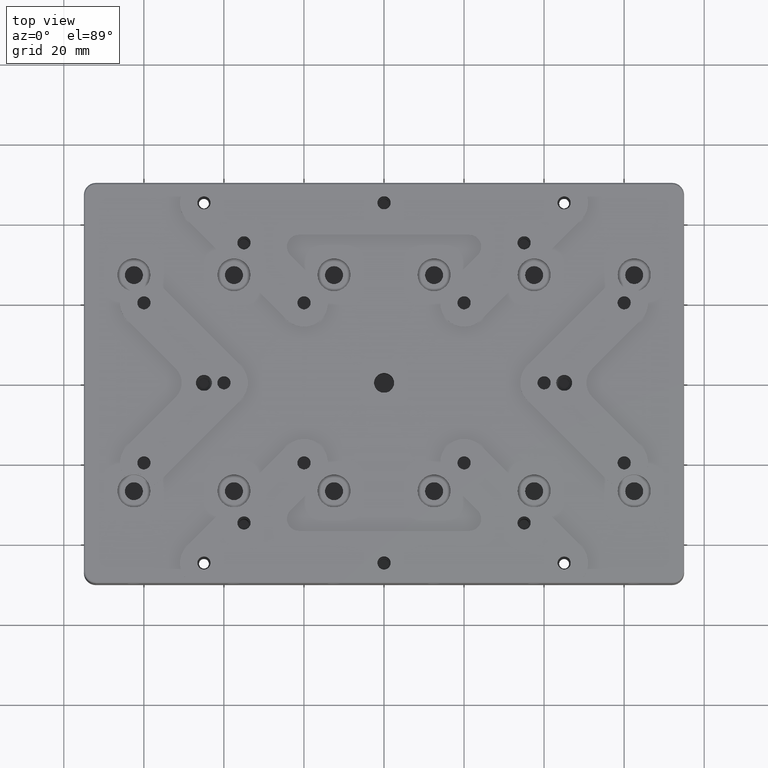
[diagram: clean part render]
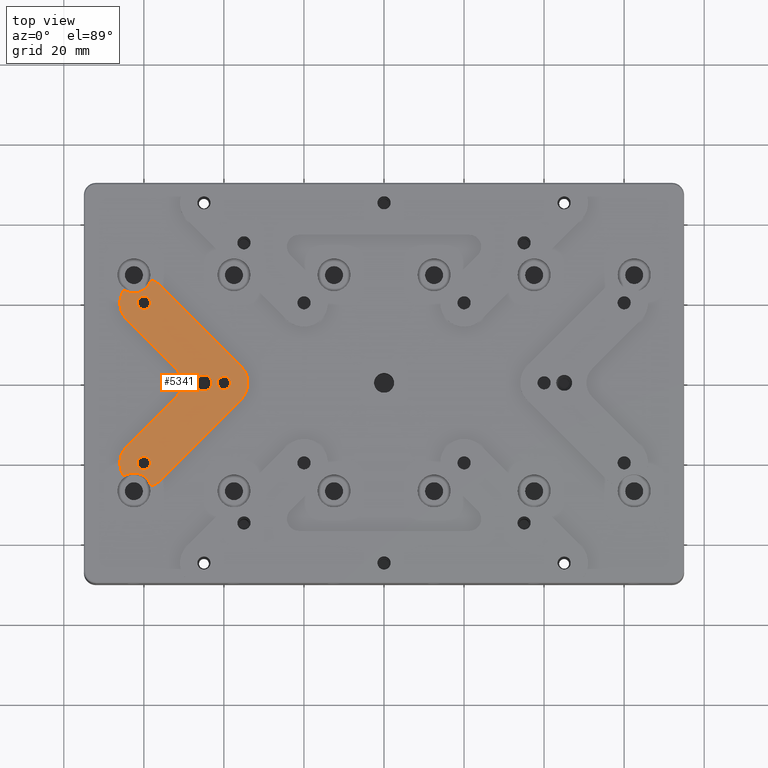
[diagram: same view with one face highlighted and labeled with its STEP entity id]
A machine part, top view. The second image highlights one B-rep face of the part: STEP entity #5341.
In plain terms, the highlighted planar face has unit normal (0, 0, 1).
Its self-contained STEP definition (entity closure, byte-faithful):
#219 = CARTESIAN_POINT ( 'NONE',  ( -45.00000000000000000, 0.000000000000000000, 15.50000000000000000 ) ) ;
#331 = CARTESIAN_POINT ( 'NONE',  ( -40.00000000000000000, 0.000000000000000000, 15.50000000000000000 ) ) ;
#599 = AXIS2_PLACEMENT_3D ( 'NONE', #3971, #10894, #2479 ) ;
#1170 = AXIS2_PLACEMENT_3D ( 'NONE', #18972, #13720, #15540 ) ;
#1223 = DIRECTION ( 'NONE',  ( 1.000000000000000000, 1.156482317317871725E-15, 0.000000000000000000 ) ) ;
#1311 = VERTEX_POINT ( 'NONE', #11824 ) ;
#1357 = VERTEX_POINT ( 'NONE', #4684 ) ;
#1395 = DIRECTION ( 'NONE',  ( 0.000000000000000000, 0.000000000000000000, -1.000000000000000000 ) ) ;
#1637 = AXIS2_PLACEMENT_3D ( 'NONE', #2463, #2353, #9283 ) ;
#1649 = EDGE_CURVE ( 'NONE', #21320, #21320, #2499, .T. ) ;
#1851 = DIRECTION ( 'NONE',  ( 1.000000000000000000, 0.000000000000000000, 0.000000000000000000 ) ) ;
#1961 = DIRECTION ( 'NONE',  ( -0.000000000000000000, -0.000000000000000000, -1.000000000000000000 ) ) ;
#2003 = CIRCLE ( 'NONE', #1637, 5.999999999999998224 ) ;
#2088 = ORIENTED_EDGE ( 'NONE', *, *, #22118, .T. ) ;
#2203 = EDGE_LOOP ( 'NONE', ( #9759 ) ) ;
#2209 = EDGE_LOOP ( 'NONE', ( #14404 ) ) ;
#2353 = DIRECTION ( 'NONE',  ( -0.000000000000000000, -0.000000000000000000, -1.000000000000000000 ) ) ;
#2463 = CARTESIAN_POINT ( 'NONE',  ( -60.00000000000000000, -20.00000000000000000, 15.50000000000000000 ) ) ;
#2479 = DIRECTION ( 'NONE',  ( 1.000000000000000000, 3.469446951953615372E-15, 0.000000000000000000 ) ) ;
#2499 = CIRCLE ( 'NONE', #9766, 1.649999999999998579 ) ;
#2614 = CIRCLE ( 'NONE', #1170, 5.999999999999998224 ) ;
#2664 = CARTESIAN_POINT ( 'NONE',  ( -64.24264068711889308, 15.75735931288110869, 15.50000000000000000 ) ) ;
#3036 = VERTEX_POINT ( 'NONE', #8144 ) ;
#3085 = DIRECTION ( 'NONE',  ( -1.000000000000000000, 0.000000000000000000, 0.000000000000000000 ) ) ;
#3369 = VERTEX_POINT ( 'NONE', #6229 ) ;
#3504 = ORIENTED_EDGE ( 'NONE', *, *, #13166, .F. ) ;
#3623 = DIRECTION ( 'NONE',  ( -0.000000000000000000, -0.000000000000000000, -1.000000000000000000 ) ) ;
#3809 = EDGE_CURVE ( 'NONE', #3036, #3036, #19583, .T. ) ;
#3853 = AXIS2_PLACEMENT_3D ( 'NONE', #20772, #3623, #8392 ) ;
#3855 = EDGE_CURVE ( 'NONE', #7703, #19047, #21151, .T. ) ;
#3971 = CARTESIAN_POINT ( 'NONE',  ( -60.00000000000000000, 20.00000000000000000, 15.50000000000000000 ) ) ;
#4018 = VERTEX_POINT ( 'NONE', #21593 ) ;
#4610 = EDGE_LOOP ( 'NONE', ( #8257, #21798, #17905, #19025, #17435, #2088, #9420, #19492, #3504, #18537, #18230, #11520 ) ) ;
#4684 = CARTESIAN_POINT ( 'NONE',  ( -65.02656271155917977, 23.27622760301348137, 15.50000000000000000 ) ) ;
#4704 = DIRECTION ( 'NONE',  ( -1.000000000000000000, 0.000000000000000000, 0.000000000000000000 ) ) ;
#4740 = AXIS2_PLACEMENT_3D ( 'NONE', #21848, #1395, #4704 ) ;
#4949 = CIRCLE ( 'NONE', #599, 5.999999999999998224 ) ;
#5249 = FACE_BOUND ( 'NONE', #14964, .T. ) ;
#5250 = CARTESIAN_POINT ( 'NONE',  ( -64.24264068712000153, -15.75735931288000202, 15.50000000000000000 ) ) ;
#5341 = ADVANCED_FACE ( 'NONE', ( #13866, #5249, #12052, #11708, #18998 ), #13632, .T. ) ;
#5685 = EDGE_CURVE ( 'NONE', #7703, #1357, #2614, .T. ) ;
#5773 = CARTESIAN_POINT ( 'NONE',  ( -58.35000000000000142, 20.00000000000000000, 15.50000000000000000 ) ) ;
#5833 = CARTESIAN_POINT ( 'NONE',  ( -58.18610697169749812, -25.71924751010858756, 15.50000000000000000 ) ) ;
#6034 = DIRECTION ( 'NONE',  ( 1.000000000000000000, 0.000000000000000000, 0.000000000000000000 ) ) ;
#6075 = CARTESIAN_POINT ( 'NONE',  ( -35.75735931288025427, -4.242640687119249243, 15.50000000000000000 ) ) ;
#6229 = CARTESIAN_POINT ( 'NONE',  ( -35.75735931288011216, 4.242640687119394904, 15.50000000000000000 ) ) ;
#6234 = CARTESIAN_POINT ( 'NONE',  ( -64.24264068712000153, -15.75735931287999847, 15.50000000000000000 ) ) ;
#6525 = CARTESIAN_POINT ( 'NONE',  ( -60.00000000000000000, -20.00000000000000000, 15.50000000000000000 ) ) ;
#6745 = DIRECTION ( 'NONE',  ( -0.000000000000000000, -0.000000000000000000, -1.000000000000000000 ) ) ;
#6972 = AXIS2_PLACEMENT_3D ( 'NONE', #10239, #8196, #15106 ) ;
#7143 = DIRECTION ( 'NONE',  ( 1.000000000000000000, 0.000000000000000000, 0.000000000000000000 ) ) ;
#7214 = VERTEX_POINT ( 'NONE', #15872 ) ;
#7261 = DIRECTION ( 'NONE',  ( -0.000000000000000000, -0.000000000000000000, -1.000000000000000000 ) ) ;
#7308 = EDGE_CURVE ( 'NONE', #12627, #14247, #2003, .T. ) ;
#7431 = AXIS2_PLACEMENT_3D ( 'NONE', #22039, #8302, #3085 ) ;
#7446 = CIRCLE ( 'NONE', #20156, 2.000000000000001776 ) ;
#7703 = VERTEX_POINT ( 'NONE', #2664 ) ;
#7800 = EDGE_CURVE ( 'NONE', #17230, #17230, #7446, .T. ) ;
#7831 = CARTESIAN_POINT ( 'NONE',  ( -60.00000000000000000, 20.00000000000000000, 15.50000000000000000 ) ) ;
#8144 = CARTESIAN_POINT ( 'NONE',  ( -38.35000000000000142, 0.000000000000000000, 15.50000000000000000 ) ) ;
#8196 = DIRECTION ( 'NONE',  ( 0.000000000000000000, 0.000000000000000000, 1.000000000000000000 ) ) ;
#8257 = ORIENTED_EDGE ( 'NONE', *, *, #10950, .F. ) ;
#8302 = DIRECTION ( 'NONE',  ( 0.000000000000000000, 0.000000000000000000, -1.000000000000000000 ) ) ;
#8392 = DIRECTION ( 'NONE',  ( 1.000000000000000000, 3.552713678800502507E-15, 0.000000000000000000 ) ) ;
#9072 = DIRECTION ( 'NONE',  ( -0.000000000000000000, -0.000000000000000000, -1.000000000000000000 ) ) ;
#9283 = DIRECTION ( 'NONE',  ( 1.000000000000000000, -3.469446951953615372E-15, 0.000000000000000000 ) ) ;
#9311 = DIRECTION ( 'NONE',  ( -0.000000000000000000, -0.000000000000000000, -1.000000000000000000 ) ) ;
#9420 = ORIENTED_EDGE ( 'NONE', *, *, #7308, .F. ) ;
#9759 = ORIENTED_EDGE ( 'NONE', *, *, #3809, .T. ) ;
#9766 = AXIS2_PLACEMENT_3D ( 'NONE', #7831, #9311, #6034 ) ;
#10190 = DIRECTION ( 'NONE',  ( -0.000000000000000000, -0.000000000000000000, -1.000000000000000000 ) ) ;
#10239 = CARTESIAN_POINT ( 'NONE',  ( -75.00000000000000000, 50.00000000000000000, 15.50000000000000000 ) ) ;
#10881 = VECTOR ( 'NONE', #21040, 1000.000000000000114 ) ;
#10894 = DIRECTION ( 'NONE',  ( -0.000000000000000000, -0.000000000000000000, -1.000000000000000000 ) ) ;
#10950 = EDGE_CURVE ( 'NONE', #1311, #7214, #4949, .T. ) ;
#11311 = DIRECTION ( 'NONE',  ( -0.7071067811865474617, 0.7071067811865474617, -0.000000000000000000 ) ) ;
#11520 = ORIENTED_EDGE ( 'NONE', *, *, #18023, .T. ) ;
#11576 = EDGE_CURVE ( 'NONE', #12627, #17675, #19257, .T. ) ;
#11596 = AXIS2_PLACEMENT_3D ( 'NONE', #15703, #1961, #1851 ) ;
#11708 = FACE_BOUND ( 'NONE', #2203, .T. ) ;
#11824 = CARTESIAN_POINT ( 'NONE',  ( -58.18610697169902579, 25.71924751010839927, 15.50000000000000000 ) ) ;
#11854 = DIRECTION ( 'NONE',  ( 0.7071067811865474617, 0.7071067811865474617, -0.000000000000000000 ) ) ;
#12052 = FACE_BOUND ( 'NONE', #2209, .T. ) ;
#12152 = CIRCLE ( 'NONE', #7431, 4.500000000000003553 ) ;
#12159 = DIRECTION ( 'NONE',  ( -0.7071067811865474617, -0.7071067811865474617, -0.000000000000000000 ) ) ;
#12178 = CIRCLE ( 'NONE', #3853, 4.999999999999997335 ) ;
#12473 = DIRECTION ( 'NONE',  ( 1.000000000000000000, -3.552713678800501718E-15, 0.000000000000000000 ) ) ;
#12621 = CARTESIAN_POINT ( 'NONE',  ( -58.35000000000000142, -20.00000000000000000, 15.50000000000000000 ) ) ;
#12627 = VERTEX_POINT ( 'NONE', #22259 ) ;
#12699 = CARTESIAN_POINT ( 'NONE',  ( -52.02081528016938705, -3.535533905932108478, 15.50000000000000000 ) ) ;
#12784 = AXIS2_PLACEMENT_3D ( 'NONE', #6525, #6745, #18572 ) ;
#12963 = ORIENTED_EDGE ( 'NONE', *, *, #1649, .T. ) ;
#13166 = EDGE_CURVE ( 'NONE', #4018, #17675, #14077, .T. ) ;
#13184 = CARTESIAN_POINT ( 'NONE',  ( -52.02081528016925205, 3.535533905932257248, 15.50000000000000000 ) ) ;
#13626 = ORIENTED_EDGE ( 'NONE', *, *, #18611, .T. ) ;
#13632 = PLANE ( 'NONE',  #6972 ) ;
#13720 = DIRECTION ( 'NONE',  ( -0.000000000000000000, -0.000000000000000000, -1.000000000000000000 ) ) ;
#13866 = FACE_BOUND ( 'NONE', #14324, .T. ) ;
#14077 = CIRCLE ( 'NONE', #16267, 5.999999999999998224 ) ;
#14217 = EDGE_CURVE ( 'NONE', #3369, #17194, #17754, .T. ) ;
#14247 = VERTEX_POINT ( 'NONE', #6234 ) ;
#14324 = EDGE_LOOP ( 'NONE', ( #12963 ) ) ;
#14404 = ORIENTED_EDGE ( 'NONE', *, *, #7800, .T. ) ;
#14964 = EDGE_LOOP ( 'NONE', ( #13626 ) ) ;
#15106 = DIRECTION ( 'NONE',  ( 1.000000000000000000, 0.000000000000000000, -0.000000000000000000 ) ) ;
#15201 = AXIS2_PLACEMENT_3D ( 'NONE', #331, #7261, #12473 ) ;
#15267 = CARTESIAN_POINT ( 'NONE',  ( -35.75735931288000558, -4.242640687118999665, 15.50000000000000000 ) ) ;
#15458 = VERTEX_POINT ( 'NONE', #12699 ) ;
#15540 = DIRECTION ( 'NONE',  ( 1.000000000000000000, -1.734723475976807686E-15, 0.000000000000000000 ) ) ;
#15703 = CARTESIAN_POINT ( 'NONE',  ( -40.00000000000000000, 0.000000000000000000, 15.50000000000000000 ) ) ;
#15821 = VERTEX_POINT ( 'NONE', #12621 ) ;
#15872 = CARTESIAN_POINT ( 'NONE',  ( -55.75735931288035374, 24.24264068711964626, 15.50000000000000000 ) ) ;
#15898 = LINE ( 'NONE', #5250, #18403 ) ;
#15920 = EDGE_CURVE ( 'NONE', #4018, #17194, #20500, .T. ) ;
#16267 = AXIS2_PLACEMENT_3D ( 'NONE', #22115, #10190, #1223 ) ;
#17194 = VERTEX_POINT ( 'NONE', #6075 ) ;
#17230 = VERTEX_POINT ( 'NONE', #19272 ) ;
#17435 = ORIENTED_EDGE ( 'NONE', *, *, #21173, .T. ) ;
#17675 = VERTEX_POINT ( 'NONE', #5833 ) ;
#17754 = CIRCLE ( 'NONE', #15201, 5.999999999999998224 ) ;
#17905 = ORIENTED_EDGE ( 'NONE', *, *, #5685, .F. ) ;
#18023 = EDGE_CURVE ( 'NONE', #3369, #7214, #19844, .T. ) ;
#18230 = ORIENTED_EDGE ( 'NONE', *, *, #14217, .F. ) ;
#18403 = VECTOR ( 'NONE', #12159, 1000.000000000000114 ) ;
#18537 = ORIENTED_EDGE ( 'NONE', *, *, #15920, .T. ) ;
#18572 = DIRECTION ( 'NONE',  ( 1.000000000000000000, 0.000000000000000000, 0.000000000000000000 ) ) ;
#18611 = EDGE_CURVE ( 'NONE', #15821, #15821, #20428, .T. ) ;
#18972 = CARTESIAN_POINT ( 'NONE',  ( -60.00000000000000000, 20.00000000000000000, 15.50000000000000000 ) ) ;
#18998 = FACE_OUTER_BOUND ( 'NONE', #4610, .T. ) ;
#19025 = ORIENTED_EDGE ( 'NONE', *, *, #3855, .T. ) ;
#19047 = VERTEX_POINT ( 'NONE', #13184 ) ;
#19257 = CIRCLE ( 'NONE', #4740, 4.500000000000003553 ) ;
#19272 = CARTESIAN_POINT ( 'NONE',  ( -43.00000000000000000, 0.000000000000000000, 15.50000000000000000 ) ) ;
#19492 = ORIENTED_EDGE ( 'NONE', *, *, #11576, .T. ) ;
#19561 = CARTESIAN_POINT ( 'NONE',  ( -52.02081528016999812, 3.535533905933000653, 15.50000000000000000 ) ) ;
#19583 = CIRCLE ( 'NONE', #11596, 1.649999999999998579 ) ;
#19637 = VECTOR ( 'NONE', #11854, 1000.000000000000114 ) ;
#19844 = LINE ( 'NONE', #21769, #22204 ) ;
#20156 = AXIS2_PLACEMENT_3D ( 'NONE', #219, #9072, #7143 ) ;
#20428 = CIRCLE ( 'NONE', #12784, 1.649999999999998579 ) ;
#20500 = LINE ( 'NONE', #15267, #19637 ) ;
#20702 = EDGE_CURVE ( 'NONE', #1311, #1357, #12152, .T. ) ;
#20772 = CARTESIAN_POINT ( 'NONE',  ( -55.55634918610000028, 2.173367743851999897E-14, 15.50000000000000000 ) ) ;
#21040 = DIRECTION ( 'NONE',  ( 0.7071067811865474617, -0.7071067811865474617, -0.000000000000000000 ) ) ;
#21151 = LINE ( 'NONE', #19561, #10881 ) ;
#21173 = EDGE_CURVE ( 'NONE', #19047, #15458, #12178, .T. ) ;
#21320 = VERTEX_POINT ( 'NONE', #5773 ) ;
#21593 = CARTESIAN_POINT ( 'NONE',  ( -55.75735931288060243, -24.24264068711939402, 15.50000000000000000 ) ) ;
#21769 = CARTESIAN_POINT ( 'NONE',  ( -55.75735931287999847, 24.24264068712000153, 15.50000000000000000 ) ) ;
#21798 = ORIENTED_EDGE ( 'NONE', *, *, #20702, .T. ) ;
#21848 = CARTESIAN_POINT ( 'NONE',  ( -62.50000000000000000, -27.00000000000000000, 15.50000000000000000 ) ) ;
#22039 = CARTESIAN_POINT ( 'NONE',  ( -62.50000000000000000, 27.00000000000000000, 15.50000000000000000 ) ) ;
#22115 = CARTESIAN_POINT ( 'NONE',  ( -60.00000000000000000, -20.00000000000000000, 15.50000000000000000 ) ) ;
#22118 = EDGE_CURVE ( 'NONE', #15458, #14247, #15898, .T. ) ;
#22204 = VECTOR ( 'NONE', #11311, 1000.000000000000114 ) ;
#22259 = CARTESIAN_POINT ( 'NONE',  ( -65.02656271156115508, -23.27622760301278149, 15.50000000000000000 ) ) ;